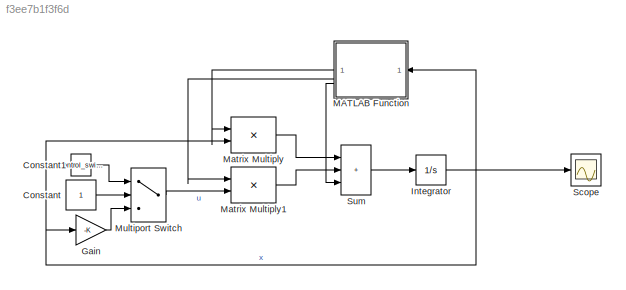
MODEL slx_f3ee7b1f3f6d
KIND model
CONFIG AbsTol = auto
CONFIG EnableMultiTasking = off
CONFIG FixedStep = auto
CONFIG MaxStep = auto
CONFIG MinStep = auto
CONFIG RelTol = 1e-3
CONFIG SampleTimeConstraint = Unconstrained
CONFIG SolverName = VariableStepAuto
CONFIG StartTime = 0.0
CONFIG StopTime = t_mod
BLOCK [Constant] Constant
BLOCK [Constant] Constant1
  Value = control_switch
BLOCK [Gain] Gain
  Gain = -K
  Multiplication = Matrix(K*u)
BLOCK [Integrator] Integrator
  InitialCondition = x_initial
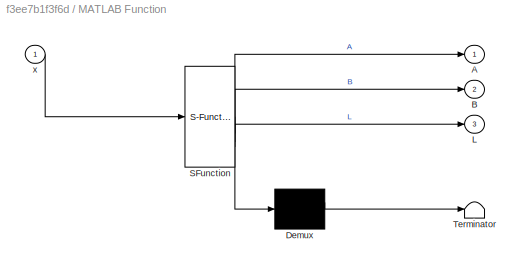
BLOCK [SubSystem] MATLAB Function
  ErrorFcn = Stateflow.Translate.translate
  NameLocation = top
  PermitHierarchicalResolution = ExplicitOnly
  SFBlockType = MATLAB Function
  TreatAsAtomicUnit = on
BLOCK [Demux] MATLAB Function/ Demux 
  Outputs = 1
BLOCK [S-Function] MATLAB Function/ SFunction 
  EnableBusSupport = on
  FunctionName = sf_sfun
  Parameters = H,a1,a2,a3,a4,a5,a6,g1,g2
  PortCounts = [1 4]
  SFcnIsStateOwnerBlock = off
  SFunctionDeploymentMode = off
  Tag = Stateflow S-Function 2
BLOCK [Terminator] MATLAB Function/ Terminator 
BLOCK [Outport] MATLAB Function/A
BLOCK [Outport] MATLAB Function/B
  Port = 2
BLOCK [Outport] MATLAB Function/L
  Port = 3
BLOCK [Inport] MATLAB Function/x
BLOCK [Product] Matrix Multiply
  Multiplication = Matrix(*)
BLOCK [Product] Matrix Multiply1
  Multiplication = Matrix(*)
BLOCK [MultiPortSwitch] Multiport Switch
  InputSameDT = off
  Inputs = 2
  SaturateOnIntegerOverflow = off
BLOCK [Scope] Scope
  Floating = off
  NumInputPorts = 1
  ScopeSpecificationString = Simulink.scopes.TimeScopeBlockCfg('CurrentConfiguration', extmgr.ConfigurationSet(extmgr.Configuration('Core','General UI',true),extmgr.Configuration('Core','Source UI',true),extmgr.Configuration('Sources','WiredSimulink',true,'DataLogging',true,'DataLoggingVariableName','x','DataLoggingSaveFormat','Structure'),extmgr.Configuration('Visuals','Time Domain',true,'SerializedDisplays',{struct('MinYLim...<+1469ch>
BLOCK [Sum] Sum
  IconShape = rectangular
  Inputs = +++
LINE Constant1:1 -> Multiport Switch:1
LINE Constant:1 -> Multiport Switch:2
LINE Gain:1 -> Multiport Switch:3
NET Integrator:1 -> Gain:1, MATLAB Function:1, Matrix Multiply:2, Scope:1
LINE MATLAB Function:1 -> Matrix Multiply:1
LINE MATLAB Function:2 -> Matrix Multiply1:1
LINE MATLAB Function:3 -> Sum:3
LINE Matrix Multiply1:1 -> Sum:2
LINE Matrix Multiply:1 -> Sum:1
LINE Multiport Switch:1 -> Matrix Multiply1:2
LINE Sum:1 -> Integrator:1
note: NET lines group one-source signal fan-out (src -> all destinations, sorted); 1:1 wires keep LINE
CHART MATLAB Function states=1 transitions=1
  STATE_LABEL 'eML_blk_kernel()'
  STATE_LABEL 'SCRIPT:\nfunction [A, B, L]= fcn(x, a1, a2, a3, a4, a5, a6, g1, g2, H)\n\nM_inv = inv([a1 a2*cos(x(2)) a3*cos(x(3));\n             a2*cos(x(2)) a4 a5*cos(x(2)-x(3));\n             a3*cos(x(3)) a5*cos(x(2)-x(3)) a6]);\nC = [0 -a2*sin(x(2))*x(5) -a3*sin(x(3))*x(6);\n     0 0 a5*sin(x(2)-x(3))*x(6);\n     0 -a5*sin(x(2)-x(3))*x(5) 0];\nG = [0; -g1*sin(x(2)); -g2*sin(x(3))];\n\nA = [zeros([3 3]), eye(3);\n     ze...<+91ch>'
CHART  states=0 transitions=0
